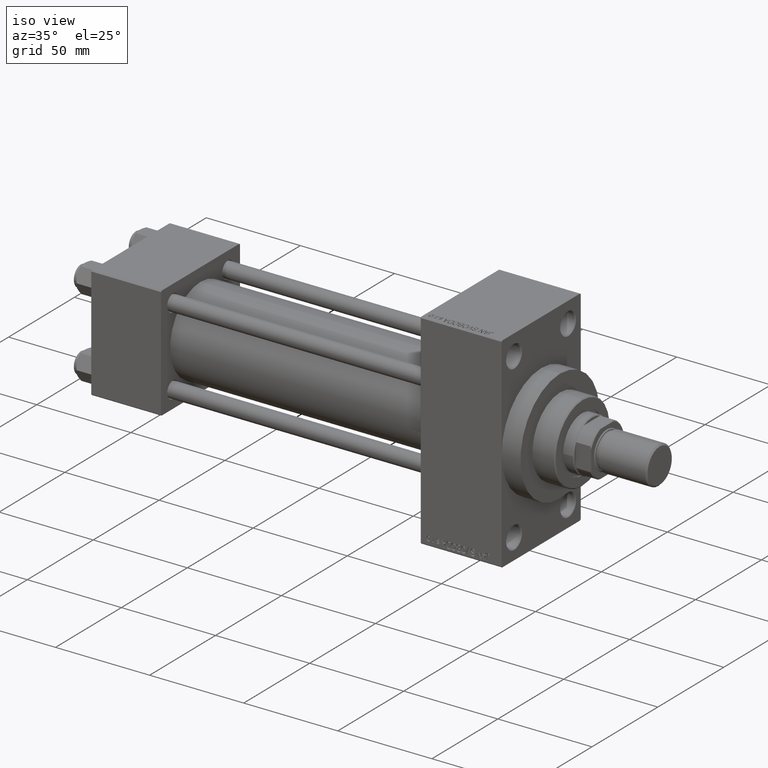
[diagram: clean part render]
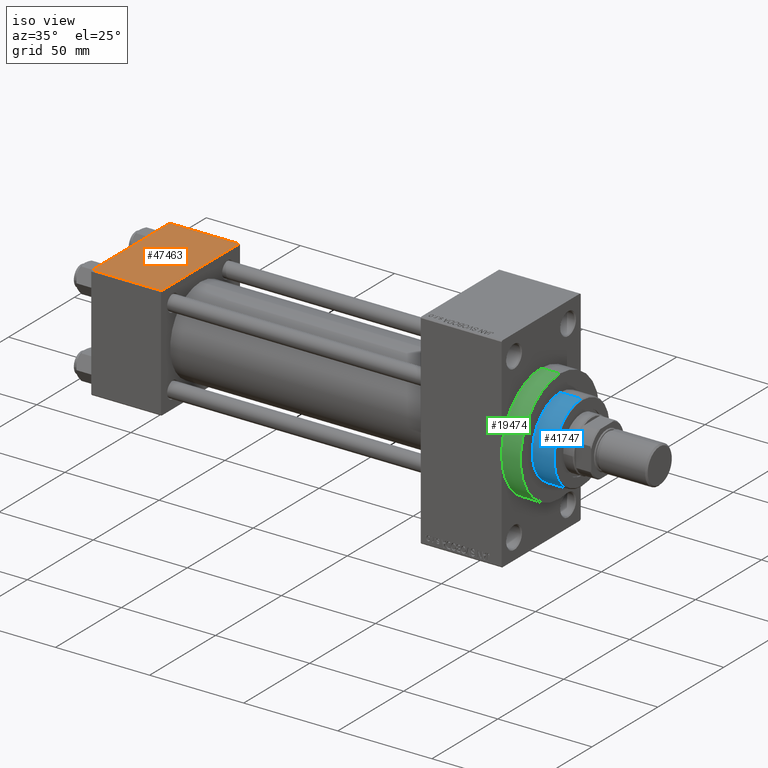
[diagram: same view with three faces highlighted in distinct colors, each labeled with its STEP entity id]
A machine part, iso view with three faces highlighted in distinct colors.
Their STEP definitions:

[orange] entity #47463 — the highlighted planar face has unit normal (0, 0, -1).
#320 = VERTEX_POINT ( 'NONE', #10643 ) ;
#531 = DIRECTION ( 'NONE',  ( 0.000000000000000000, -1.000000000000000000, -1.156482317317871725E-16 ) ) ;
#667 = VERTEX_POINT ( 'NONE', #7682 ) ;
#697 = EDGE_CURVE ( 'NONE', #320, #47093, #23744, .T. ) ;
#1664 = CARTESIAN_POINT ( 'NONE',  ( 37.00000000000000000, -29.49999999999998579, 29.99999999999999289 ) ) ;
#2259 = CARTESIAN_POINT ( 'NONE',  ( 37.00000000000000000, 29.49999999999999289, 30.00000000000000000 ) ) ;
#2794 = FACE_OUTER_BOUND ( 'NONE', #46320, .T. ) ;
#4828 = ORIENTED_EDGE ( 'NONE', *, *, #8802, .F. ) ;
#6233 = VERTEX_POINT ( 'NONE', #2259 ) ;
#6426 = CARTESIAN_POINT ( 'NONE',  ( 37.00000000000000000, 29.99999999999999289, 30.00000000000000000 ) ) ;
#6448 = EDGE_CURVE ( 'NONE', #667, #320, #33570, .T. ) ;
#7682 = CARTESIAN_POINT ( 'NONE',  ( 0.000000000000000000, 29.49999999999999289, 30.00000000000000000 ) ) ;
#8802 = EDGE_CURVE ( 'NONE', #6233, #47093, #14924, .T. ) ;
#10643 = CARTESIAN_POINT ( 'NONE',  ( 0.000000000000000000, -29.49999999999998579, 29.99999999999999289 ) ) ;
#11159 = ORIENTED_EDGE ( 'NONE', *, *, #6448, .T. ) ;
#14924 = LINE ( 'NONE', #44358, #41620 ) ;
#15122 = LINE ( 'NONE', #33691, #44727 ) ;
#15388 = VECTOR ( 'NONE', #531, 1000.000000000000000 ) ;
#23744 = LINE ( 'NONE', #27145, #34540 ) ;
#25624 = CARTESIAN_POINT ( 'NONE',  ( 0.000000000000000000, 29.99999999999999289, 30.00000000000000000 ) ) ;
#27145 = CARTESIAN_POINT ( 'NONE',  ( 37.00000000000000000, -29.50000000000000000, 29.99999999999999289 ) ) ;
#28604 = DIRECTION ( 'NONE',  ( 0.000000000000000000, 1.000000000000000000, 1.156482317317871725E-16 ) ) ;
#32456 = DIRECTION ( 'NONE',  ( 0.000000000000000000, 1.156482317317871725E-16, -1.000000000000000000 ) ) ;
#33570 = LINE ( 'NONE', #25624, #15388 ) ;
#33691 = CARTESIAN_POINT ( 'NONE',  ( 0.000000000000000000, 29.49999999999999289, 30.00000000000000000 ) ) ;
#34322 = AXIS2_PLACEMENT_3D ( 'NONE', #6426, #32456, #28604 ) ;
#34374 = DIRECTION ( 'NONE',  ( 1.000000000000000000, 0.000000000000000000, 0.000000000000000000 ) ) ;
#34540 = VECTOR ( 'NONE', #34374, 1000.000000000000000 ) ;
#37520 = EDGE_CURVE ( 'NONE', #6233, #667, #15122, .T. ) ;
#37787 = DIRECTION ( 'NONE',  ( -1.000000000000000000, 0.000000000000000000, 0.000000000000000000 ) ) ;
#37872 = ORIENTED_EDGE ( 'NONE', *, *, #37520, .T. ) ;
#39694 = PLANE ( 'NONE',  #34322 ) ;
#40722 = DIRECTION ( 'NONE',  ( 0.000000000000000000, -1.000000000000000000, -1.156482317317871725E-16 ) ) ;
#41620 = VECTOR ( 'NONE', #40722, 1000.000000000000000 ) ;
#43701 = ORIENTED_EDGE ( 'NONE', *, *, #697, .T. ) ;
#44358 = CARTESIAN_POINT ( 'NONE',  ( 37.00000000000000000, 29.99999999999999289, 30.00000000000000000 ) ) ;
#44727 = VECTOR ( 'NONE', #37787, 1000.000000000000000 ) ;
#46320 = EDGE_LOOP ( 'NONE', ( #11159, #43701, #4828, #37872 ) ) ;
#47093 = VERTEX_POINT ( 'NONE', #1664 ) ;
#47463 = ADVANCED_FACE ( 'NONE', ( #2794 ), #39694, .F. ) ;

[blue] entity #41747 — the highlighted cylindrical surface (partial cylindrical patch) has radius 21 mm, axis along (-1, 0, 0).
#447 = VECTOR ( 'NONE', #42705, 1000.000000000000000 ) ;
#1070 = EDGE_CURVE ( 'NONE', #23798, #35626, #8756, .T. ) ;
#4467 = EDGE_CURVE ( 'NONE', #23798, #34192, #46908, .T. ) ;
#8286 = ORIENTED_EDGE ( 'NONE', *, *, #19696, .T. ) ;
#8485 = DIRECTION ( 'NONE',  ( -1.000000000000000000, 0.000000000000000000, 0.000000000000000000 ) ) ;
#8756 = LINE ( 'NONE', #23450, #46151 ) ;
#10370 = VERTEX_POINT ( 'NONE', #29958 ) ;
#11915 = CARTESIAN_POINT ( 'NONE',  ( 21.00000000000000000, 2.571758278209441661E-15, 54.75999999999999091 ) ) ;
#12600 = EDGE_CURVE ( 'NONE', #10370, #35626, #16321, .T. ) ;
#13780 = AXIS2_PLACEMENT_3D ( 'NONE', #16810, #42135, #34898 ) ;
#14829 = AXIS2_PLACEMENT_3D ( 'NONE', #26573, #34282, #8485 ) ;
#16321 = CIRCLE ( 'NONE', #39434, 21.00000000000000000 ) ;
#16810 = CARTESIAN_POINT ( 'NONE',  ( 0.000000000000000000, 0.000000000000000000, 54.75999999999999091 ) ) ;
#17314 = CARTESIAN_POINT ( 'NONE',  ( -21.00000000000000000, 0.000000000000000000, 54.75999999999999091 ) ) ;
#17359 = ORIENTED_EDGE ( 'NONE', *, *, #1070, .F. ) ;
#19696 = EDGE_CURVE ( 'NONE', #34192, #10370, #20267, .T. ) ;
#19770 = CARTESIAN_POINT ( 'NONE',  ( 0.000000000000000000, 0.000000000000000000, 43.25999999999999801 ) ) ;
#20267 = LINE ( 'NONE', #27521, #447 ) ;
#21242 = CARTESIAN_POINT ( 'NONE',  ( -21.00000000000000000, 0.000000000000000000, 43.25999999999999801 ) ) ;
#23415 = CYLINDRICAL_SURFACE ( 'NONE', #14829, 21.00000000000000000 ) ;
#23450 = CARTESIAN_POINT ( 'NONE',  ( -21.00000000000000000, 0.000000000000000000, 55.26000000000000512 ) ) ;
#23651 = FACE_OUTER_BOUND ( 'NONE', #30704, .T. ) ;
#23798 = VERTEX_POINT ( 'NONE', #17314 ) ;
#26573 = CARTESIAN_POINT ( 'NONE',  ( 0.000000000000000000, 0.000000000000000000, 55.26000000000000512 ) ) ;
#27521 = CARTESIAN_POINT ( 'NONE',  ( 21.00000000000000000, 2.571758278209441661E-15, 55.26000000000000512 ) ) ;
#27988 = DIRECTION ( 'NONE',  ( 0.000000000000000000, 0.000000000000000000, 1.000000000000000000 ) ) ;
#29958 = CARTESIAN_POINT ( 'NONE',  ( 21.00000000000000000, 2.571758278209441661E-15, 43.25999999999999801 ) ) ;
#30704 = EDGE_LOOP ( 'NONE', ( #42507, #8286, #44660, #17359 ) ) ;
#34091 = DIRECTION ( 'NONE',  ( -0.000000000000000000, -0.000000000000000000, -1.000000000000000000 ) ) ;
#34192 = VERTEX_POINT ( 'NONE', #11915 ) ;
#34282 = DIRECTION ( 'NONE',  ( -0.000000000000000000, -0.000000000000000000, -1.000000000000000000 ) ) ;
#34733 = DIRECTION ( 'NONE',  ( 1.000000000000000000, 0.000000000000000000, 0.000000000000000000 ) ) ;
#34898 = DIRECTION ( 'NONE',  ( 1.000000000000000000, 0.000000000000000000, 0.000000000000000000 ) ) ;
#35626 = VERTEX_POINT ( 'NONE', #21242 ) ;
#39434 = AXIS2_PLACEMENT_3D ( 'NONE', #19770, #27988, #34733 ) ;
#41747 = ADVANCED_FACE ( 'NONE', ( #23651 ), #23415, .T. ) ;
#42135 = DIRECTION ( 'NONE',  ( 0.000000000000000000, 0.000000000000000000, -1.000000000000000000 ) ) ;
#42507 = ORIENTED_EDGE ( 'NONE', *, *, #4467, .T. ) ;
#42705 = DIRECTION ( 'NONE',  ( -0.000000000000000000, -0.000000000000000000, -1.000000000000000000 ) ) ;
#44660 = ORIENTED_EDGE ( 'NONE', *, *, #12600, .T. ) ;
#46151 = VECTOR ( 'NONE', #34091, 1000.000000000000000 ) ;
#46908 = CIRCLE ( 'NONE', #13780, 21.00000000000000000 ) ;

[green] entity #19474 — the highlighted cylindrical surface (partial cylindrical patch) has radius 30 mm, axis along (-1, -0, -0).
#439 = DIRECTION ( 'NONE',  ( 0.000000000000000000, 0.000000000000000000, -1.000000000000000000 ) ) ;
#490 = DIRECTION ( 'NONE',  ( -1.000000000000000000, -0.000000000000000000, -0.000000000000000000 ) ) ;
#1093 = EDGE_LOOP ( 'NONE', ( #27698, #46094, #34135, #7164, #8327 ) ) ;
#2914 = CARTESIAN_POINT ( 'NONE',  ( 218.0000000000000284, 3.673940397442059178E-15, -30.00000000000000000 ) ) ;
#3585 = DIRECTION ( 'NONE',  ( -1.000000000000000000, -0.000000000000000000, -0.000000000000000000 ) ) ;
#4119 = CARTESIAN_POINT ( 'NONE',  ( 228.0000000000000284, 0.000000000000000000, 0.000000000000000000 ) ) ;
#4299 = LINE ( 'NONE', #37092, #10934 ) ;
#4838 = EDGE_CURVE ( 'NONE', #10979, #10659, #16502, .T. ) ;
#5518 = AXIS2_PLACEMENT_3D ( 'NONE', #39971, #40432, #10783 ) ;
#7164 = ORIENTED_EDGE ( 'NONE', *, *, #36410, .T. ) ;
#8327 = ORIENTED_EDGE ( 'NONE', *, *, #45050, .T. ) ;
#10659 = VERTEX_POINT ( 'NONE', #2914 ) ;
#10783 = DIRECTION ( 'NONE',  ( 0.000000000000000000, 0.000000000000000000, -1.000000000000000000 ) ) ;
#10934 = VECTOR ( 'NONE', #3585, 1000.000000000000000 ) ;
#10979 = VERTEX_POINT ( 'NONE', #24737 ) ;
#12077 = CIRCLE ( 'NONE', #15184, 30.00000000000000000 ) ;
#13046 = CARTESIAN_POINT ( 'NONE',  ( 228.0000000000000284, 0.000000000000000000, 30.00000000000000000 ) ) ;
#13467 = CIRCLE ( 'NONE', #40404, 30.00000000000000000 ) ;
#15184 = AXIS2_PLACEMENT_3D ( 'NONE', #47504, #18528, #439 ) ;
#15201 = CYLINDRICAL_SURFACE ( 'NONE', #21999, 30.00000000000000000 ) ;
#16168 = CARTESIAN_POINT ( 'NONE',  ( 218.0000000000000284, -30.00000000000000000, 0.000000000000000000 ) ) ;
#16355 = DIRECTION ( 'NONE',  ( 1.000000000000000000, 0.000000000000000000, 0.000000000000000000 ) ) ;
#16502 = LINE ( 'NONE', #35558, #16847 ) ;
#16847 = VECTOR ( 'NONE', #42788, 1000.000000000000000 ) ;
#18528 = DIRECTION ( 'NONE',  ( 1.000000000000000000, 0.000000000000000000, 0.000000000000000000 ) ) ;
#19474 = ADVANCED_FACE ( 'NONE', ( #41011 ), #15201, .T. ) ;
#20606 = VERTEX_POINT ( 'NONE', #13046 ) ;
#21959 = CARTESIAN_POINT ( 'NONE',  ( 218.0000000000000284, 0.000000000000000000, 30.00000000000000000 ) ) ;
#21999 = AXIS2_PLACEMENT_3D ( 'NONE', #4119, #490, #22431 ) ;
#22431 = DIRECTION ( 'NONE',  ( 0.000000000000000000, 0.000000000000000000, 1.000000000000000000 ) ) ;
#24737 = CARTESIAN_POINT ( 'NONE',  ( 228.0000000000000284, 3.673940397442059178E-15, -30.00000000000000000 ) ) ;
#24775 = DIRECTION ( 'NONE',  ( 0.000000000000000000, 0.000000000000000000, -1.000000000000000000 ) ) ;
#25740 = EDGE_CURVE ( 'NONE', #20606, #10979, #12077, .T. ) ;
#26426 = VERTEX_POINT ( 'NONE', #16168 ) ;
#27698 = ORIENTED_EDGE ( 'NONE', *, *, #4838, .F. ) ;
#29334 = VERTEX_POINT ( 'NONE', #21959 ) ;
#34135 = ORIENTED_EDGE ( 'NONE', *, *, #41142, .T. ) ;
#35558 = CARTESIAN_POINT ( 'NONE',  ( 228.0000000000000284, 3.673940397442059178E-15, -30.00000000000000000 ) ) ;
#36410 = EDGE_CURVE ( 'NONE', #29334, #26426, #43248, .T. ) ;
#37092 = CARTESIAN_POINT ( 'NONE',  ( 228.0000000000000284, 0.000000000000000000, 30.00000000000000000 ) ) ;
#39971 = CARTESIAN_POINT ( 'NONE',  ( 218.0000000000000284, 0.000000000000000000, 0.000000000000000000 ) ) ;
#40404 = AXIS2_PLACEMENT_3D ( 'NONE', #46745, #16355, #24775 ) ;
#40432 = DIRECTION ( 'NONE',  ( 1.000000000000000000, 0.000000000000000000, 0.000000000000000000 ) ) ;
#41011 = FACE_OUTER_BOUND ( 'NONE', #1093, .T. ) ;
#41142 = EDGE_CURVE ( 'NONE', #20606, #29334, #4299, .T. ) ;
#42788 = DIRECTION ( 'NONE',  ( -1.000000000000000000, -0.000000000000000000, -0.000000000000000000 ) ) ;
#43248 = CIRCLE ( 'NONE', #5518, 30.00000000000000000 ) ;
#45050 = EDGE_CURVE ( 'NONE', #26426, #10659, #13467, .T. ) ;
#46094 = ORIENTED_EDGE ( 'NONE', *, *, #25740, .F. ) ;
#46745 = CARTESIAN_POINT ( 'NONE',  ( 218.0000000000000284, 0.000000000000000000, 0.000000000000000000 ) ) ;
#47504 = CARTESIAN_POINT ( 'NONE',  ( 228.0000000000000284, 0.000000000000000000, 0.000000000000000000 ) ) ;